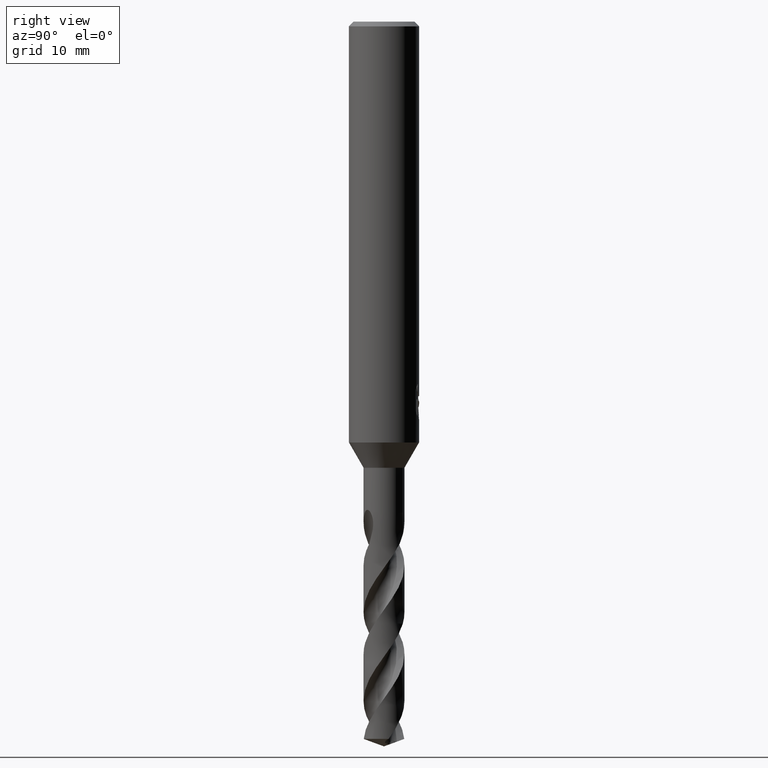
[diagram: clean part render]
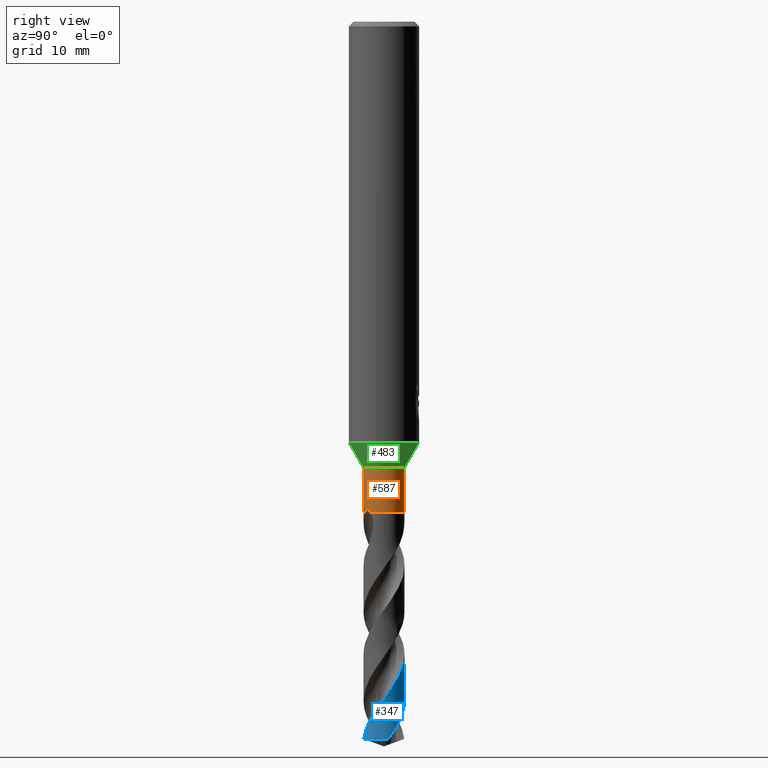
[diagram: same view with three faces highlighted in distinct colors, each labeled with its STEP entity id]
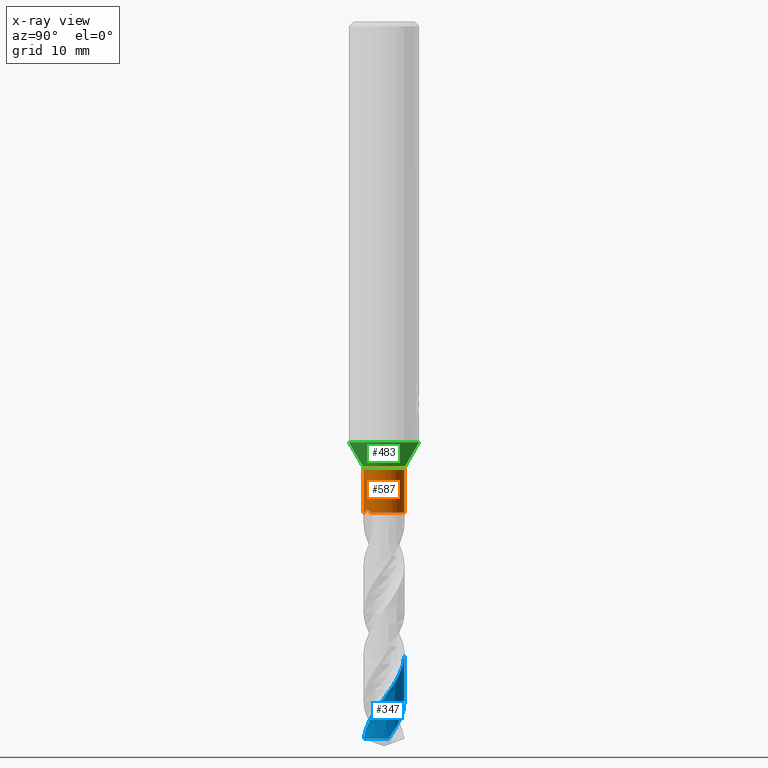
[diagram: x-ray of the same camera — body ghosted, the three highlighted faces saturated]
A machine part, right view with three faces highlighted in distinct colors.
The next image is the same camera in x-ray (body ghosted, the three faces saturated) — at least one of them is partly hidden behind the body in this view.
Their STEP definitions:

[orange] entity #587 — the highlighted cylindrical surface (edge-blend (fillet) strip) has radius 1.75 mm, axis along (-0, -0, 1).
#279=VERTEX_POINT('',#771);
#403=EDGE_CURVE('',#569,#497,#910,.T.);
#419=VERTEX_POINT('',#927);
#447=VERTEX_POINT('',#958);
#489=EDGE_CURVE('',#279,#419,#1003,.T.);
#495=EDGE_CURVE('',#447,#419,#1010,.T.);
#497=VERTEX_POINT('',#1012);
#529=EDGE_CURVE('',#279,#569,#1045,.T.);
#569=VERTEX_POINT('',#1091);
#587=ADVANCED_FACE('',(#1113),#1114,.T.);
#597=VERTEX_POINT('',#1124);
#627=EDGE_CURVE('',#597,#447,#1156,.T.);
#683=EDGE_CURVE('',#597,#497,#1213,.T.);
#771=CARTESIAN_POINT('',(0.599466722486128,-1.64412275959909,-42.0));
#910=LINE('',#2575,#2576);
#927=CARTESIAN_POINT('',(1.32441615201467,-1.14386269118398,-42.0));
#958=CARTESIAN_POINT('',(-2.14306111918916E-016,1.75,-42.0));
#1003=B_SPLINE_CURVE_WITH_KNOTS('',3,(#2971,#2972,#2973,#2974,#2975,#2976,#2977,#2978,#2979,#2980,#2981,#2982),.UNSPECIFIED.,.F.,.F.,(4,2,2,2,2,4),(0.0,0.329145595407548,0.529443022214543,0.69435032335274,0.859153776094327,1.0357119630473),.UNSPECIFIED.);
#1010=CIRCLE('',#2990,1.75);
#1012=CARTESIAN_POINT('',(2.14306111918916E-016,-1.75,-38.1650635094611));
#1045=CIRCLE('',#3155,1.75);
#1091=CARTESIAN_POINT('',(2.14306111918916E-016,-1.75,-42.0));
#1113=FACE_OUTER_BOUND('',#4313,.T.);
#1114=CYLINDRICAL_SURFACE('',#4314,1.75);
#1124=CARTESIAN_POINT('',(0.0,1.75,-38.1650635094611));
#1156=LINE('',#4506,#4507);
#1213=CIRCLE('',#4951,1.75);
#2575=CARTESIAN_POINT('',(2.14306111918916E-016,-1.75,-40.0825317547305));
#2576=VECTOR('',#5339,1.0);
#2971=CARTESIAN_POINT('',(0.599466722486128,-1.64412275959909,-42.0));
#2972=CARTESIAN_POINT('',(0.675472813455839,-1.61641003439255,-41.9258885719186));
#2973=CARTESIAN_POINT('',(0.760489547884302,-1.57932734437737,-41.8565657924817));
#2974=CARTESIAN_POINT('',(0.902008794747854,-1.50087556427395,-41.7866875470166));
#2975=CARTESIAN_POINT('',(0.956780841283039,-1.46679972667483,-41.7697907458232));
#2976=CARTESIAN_POINT('',(1.05584260957425,-1.3966745922607,-41.766106574071));
#2977=CARTESIAN_POINT('',(1.09790077254338,-1.36373467234139,-41.7746401500357));
#2978=CARTESIAN_POINT('',(1.17625998614585,-1.29675265983898,-41.8118380997322));
#2979=CARTESIAN_POINT('',(1.21071948868173,-1.26432051464304,-41.839603240028));
#2980=CARTESIAN_POINT('',(1.27349979701187,-1.2011741501788,-41.9100405856455));
#2981=CARTESIAN_POINT('',(1.30100452471281,-1.17096973609636,-41.9533842266016));
#2982=CARTESIAN_POINT('',(1.32441615201467,-1.14386269118398,-42.0));
#2990=AXIS2_PLACEMENT_3D('',#5438,#5439,#5440);
#3155=AXIS2_PLACEMENT_3D('',#5459,#5460,#5461);
#4313=EDGE_LOOP('',(#5576,#5577,#5578,#5579,#5580,#5581));
#4314=AXIS2_PLACEMENT_3D('',#5582,#5583,#5584);
#4506=CARTESIAN_POINT('',(-2.14306111918916E-016,1.75,-40.0825317547305));
#4507=VECTOR('',#5613,1.0);
#4951=AXIS2_PLACEMENT_3D('',#5642,#5643,#5644);
#5339=DIRECTION('',(-0.0,-0.0,1.0));
#5438=CARTESIAN_POINT('',(0.0,0.0,-42.0));
#5439=DIRECTION('',(0.0,0.0,-1.0));
#5440=DIRECTION('',(0.0,1.0,0.0));
#5459=CARTESIAN_POINT('',(0.0,0.0,-42.0));
#5460=DIRECTION('',(0.0,0.0,-1.0));
#5461=DIRECTION('',(0.0,1.0,0.0));
#5576=ORIENTED_EDGE('',*,*,#627,.F.);
#5577=ORIENTED_EDGE('',*,*,#683,.T.);
#5578=ORIENTED_EDGE('',*,*,#403,.F.);
#5579=ORIENTED_EDGE('',*,*,#529,.F.);
#5580=ORIENTED_EDGE('',*,*,#489,.T.);
#5581=ORIENTED_EDGE('',*,*,#495,.F.);
#5582=CARTESIAN_POINT('',(0.0,0.0,-40.0825317547305));
#5583=DIRECTION('',(-0.0,-0.0,1.0));
#5584=DIRECTION('',(0.0,1.0,0.0));
#5613=DIRECTION('',(0.0,0.0,-1.0));
#5642=CARTESIAN_POINT('',(0.0,0.0,-38.1650635094611));
#5643=DIRECTION('',(0.0,0.0,-1.0));
#5644=DIRECTION('',(0.0,1.0,0.0));

[blue] entity #347 — the highlighted conical surface has half-angle 0 deg.
#283=EDGE_CURVE('',#711,#639,#776,.T.);
#347=ADVANCED_FACE('',(#847),#848,.T.);
#427=EDGE_CURVE('',#673,#703,#936,.T.);
#639=VERTEX_POINT('',#1168);
#673=VERTEX_POINT('',#1203);
#675=EDGE_CURVE('',#673,#639,#1205,.T.);
#703=VERTEX_POINT('',#1235);
#705=EDGE_CURVE('',#711,#703,#1237,.T.);
#711=VERTEX_POINT('',#1243);
#776=B_SPLINE_CURVE_WITH_KNOTS('',3,(#1908,#1909,#1910,#1911,#1912,#1913,#1914,#1915,#1916,#1917,#1918,#1919,#1920,#1921,#1922,#1923,#1924,#1925,#1926,#1927,#1928,#1929,#1930,#1931,#1932,#1933,#1934,#1935,#1936,#1937,#1938,#1939,#1940,#1941,#1942,#1943,#1944,#1945,#1946,#1947,#1948,#1949,#1950,#1951,#1952,#1953,#1954,#1955,#1956,#1957,#1958,#1959,#1960,#1961,#1962,#1963,#1964,#1965,#1966,#1967,#1968,#1969,#1970,#1971,#1972,#1973,#1974,#1975,#1976,#1977,#1978,#1979,#1980,#1981,#1982,#1983,#1984,#1985,#1986,#1987,#1988,#1989,#1990,#1991,#1992,#1993),.UNSPECIFIED.,.F.,.F.,(4,2,2,2,2,2,2,2,2,2,2,2,2,2,2,2,2,2,2,2,2,2,2,2,2,2,2,2,2,2,2,2,2,2,2,2,2,2,2,2,2,2,4),(0.0,0.974043603745516,1.46729353331834,1.76439108332413,1.96733051675974,3.21720046240034,3.26681085383994,3.99778926377135,4.29223800571401,4.78287161761425,5.44931738732369,5.74865798885266,6.20238803819658,6.82915637049189,7.49330861572469,8.10202328078798,8.45425668812374,8.90065681122232,9.53005186130906,10.243743812598,10.8580122124303,11.9439378455943,12.6379561878717,12.7458551064634,13.4192767688239,13.7572930642747,14.4262161348574,15.1010790787376,15.7547320881622,16.4147496994472,17.0027110069048,18.6824305545575,18.9086185383265,19.2382380070086,19.6038826295242,19.8481728878445,20.151469172512,20.1797385471404,20.2188736800682,20.2526708029194,20.2943786016003,20.376954835032,20.5351807691826),.UNSPECIFIED.);
#847=FACE_OUTER_BOUND('',#2339,.T.);
#848=CONICAL_SURFACE('',#2340,1.74995,5.16447508038097E-006);
#936=B_SPLINE_CURVE_WITH_KNOTS('',3,(#2638,#2639,#2640,#2641,#2642,#2643,#2644,#2645,#2646,#2647,#2648,#2649,#2650,#2651,#2652,#2653,#2654,#2655,#2656,#2657,#2658,#2659,#2660,#2661,#2662,#2663,#2664,#2665,#2666,#2667,#2668,#2669,#2670,#2671,#2672,#2673,#2674,#2675,#2676,#2677,#2678,#2679,#2680,#2681,#2682,#2683,#2684,#2685,#2686,#2687,#2688,#2689,#2690,#2691,#2692,#2693,#2694,#2695,#2696,#2697,#2698,#2699,#2700,#2701,#2702,#2703,#2704,#2705,#2706,#2707,#2708,#2709,#2710,#2711,#2712,#2713,#2714,#2715,#2716,#2717,#2718,#2719,#2720,#2721,#2722,#2723,#2724,#2725),.UNSPECIFIED.,.F.,.F.,(4,2,2,2,2,2,2,2,2,2,2,2,2,2,2,2,2,2,2,2,2,2,2,2,2,2,2,2,2,2,2,2,2,2,2,2,2,2,2,2,2,2,2,4),(0.0,0.0802687477709614,0.134298288709109,0.188886189371718,0.371913721636104,0.440185286842689,0.48519732116409,0.528450420694526,0.587994968748795,0.654850319514302,0.689710903491107,0.922894809883429,1.07455893074529,1.22501892859062,1.38325239980819,1.80676629320769,2.22038747582014,2.86182981313341,3.72832865262681,4.42308489571376,4.91210970892384,5.88944877732945,6.38232850953601,7.19787845526162,7.69013531416066,8.5538753089084,9.04654453159488,9.87381057028676,10.3660979415676,11.2278302649346,11.7205218901372,12.5467696636752,13.0390595966493,13.9000824059533,14.3927396211918,15.2207793303693,15.7130904992262,16.5742839898542,17.0669261444791,17.888907373676,18.5595217665341,18.8105607681379,19.6954548208589,20.591588560153),.UNSPECIFIED.);
#1168=CARTESIAN_POINT('',(-1.09890961226863E-014,1.74998323150977,-58.1161605916098));
#1203=CARTESIAN_POINT('',(5.77527281538844E-015,1.7499625516412,-54.1119068690834));
#1205=LINE('',#4936,#4937);
#1235=CARTESIAN_POINT('',(0.250196585667946,-1.73202242148308,-61.3630520900341));
#1237=CIRCLE('',#5000,1.75);
#1243=CARTESIAN_POINT('',(1.70445062211904,0.396671245186779,-61.3630520900341));
#1908=CARTESIAN_POINT('',(1.70445062211904,0.396671245186766,-61.3630520900342));
#1909=CARTESIAN_POINT('',(1.66111375343563,0.582878795991717,-61.1006277270643));
#1910=CARTESIAN_POINT('',(1.58775279467385,0.760070525583836,-60.8353089726521));
#1911=CARTESIAN_POINT('',(1.43683977407769,1.00361918979296,-60.4394156216837));
#1912=CARTESIAN_POINT('',(1.37939731816996,1.08122741332449,-60.3071144713288));
#1913=CARTESIAN_POINT('',(1.27747170770906,1.19746411011267,-60.0941099033158));
#1914=CARTESIAN_POINT('',(1.2370785707928,1.23913814808578,-60.0141326581067));
#1915=CARTESIAN_POINT('',(1.16588837190418,1.30565733589649,-59.8790937403446));
#1916=CARTESIAN_POINT('',(1.13616281535945,1.33160013549033,-59.8241531910214));
#1917=CARTESIAN_POINT('',(0.917503542742688,1.50981701071042,-59.4323598420131));
#1918=CARTESIAN_POINT('',(0.699939590836492,1.6220712371892,-59.1059421767772));
#1919=CARTESIAN_POINT('',(0.457430316550718,1.68917218032921,-58.7557105566524));
#1920=CARTESIAN_POINT('',(0.448169672333806,1.69165274361652,-58.742350986773));
#1921=CARTESIAN_POINT('',(0.301731563413887,1.72958775933734,-58.5317923575118));
#1922=CARTESIAN_POINT('',(0.160374240969461,1.74844824294004,-58.3368816761276));
#1923=CARTESIAN_POINT('',(-0.0397114107212767,1.75047554570916,-58.0615061844922));
#1924=CARTESIAN_POINT('',(-0.0971000619172283,1.74822712155988,-57.9825471787972));
#1925=CARTESIAN_POINT('',(-0.249383096063619,1.73475390406472,-57.7714867007185));
#1926=CARTESIAN_POINT('',(-0.343454401134999,1.71858224390627,-57.6387227046301));
#1927=CARTESIAN_POINT('',(-0.560782430700384,1.66272485666103,-57.3277364764948));
#1928=CARTESIAN_POINT('',(-0.682223205146323,1.6167339927672,-57.1503787764035));
#1929=CARTESIAN_POINT('',(-0.849571903749761,1.53102671754663,-56.8914786261135));
#1930=CARTESIAN_POINT('',(-0.899991839877137,1.50193376399665,-56.8113280113028));
#1931=CARTESIAN_POINT('',(-1.02275526102285,1.42272080324665,-56.6090824111837));
#1932=CARTESIAN_POINT('',(-1.09291319908538,1.36956643417475,-56.4865038305781));
#1933=CARTESIAN_POINT('',(-1.25009100686924,1.2306444777674,-56.196236190568));
#1934=CARTESIAN_POINT('',(-1.33272314641203,1.14067541649712,-56.0293362357362));
#1935=CARTESIAN_POINT('',(-1.48245864640476,0.938845270061716,-55.6831902092667));
#1936=CARTESIAN_POINT('',(-1.54757235929656,0.827011149522708,-55.5039983952524));
#1937=CARTESIAN_POINT('',(-1.64747906914125,0.60173851428813,-55.1625694686745));
#1938=CARTESIAN_POINT('',(-1.68434023116717,0.48926627574313,-55.0006458954861));
#1939=CARTESIAN_POINT('',(-1.72422276281697,0.306795424210424,-54.7435315090941));
#1940=CARTESIAN_POINT('',(-1.73487631064609,0.239237533182169,-54.6494628138491));
#1941=CARTESIAN_POINT('',(-1.7500181267817,0.0853392422058732,-54.4353502837866));
#1942=CARTESIAN_POINT('',(-1.75210100653162,-0.00107227030882243,-54.3149763188469));
#1943=CARTESIAN_POINT('',(-1.74167475010098,-0.209329773673887,-54.026446855104));
#1944=CARTESIAN_POINT('',(-1.72284662887104,-0.330344266472516,-53.8591289105452));
#1945=CARTESIAN_POINT('',(-1.65593178564536,-0.582655896060815,-53.4995842491892));
#1946=CARTESIAN_POINT('',(-1.60463739893164,-0.711739973045769,-53.3072289639327));
#1947=CARTESIAN_POINT('',(-1.48225958785939,-0.937757519943169,-52.9515276307979));
#1948=CARTESIAN_POINT('',(-1.41507297401583,-1.03640346768522,-52.7883758271165));
#1949=CARTESIAN_POINT('',(-1.20240705204541,-1.28879433872343,-52.3338696907037));
#1950=CARTESIAN_POINT('',(-1.03866864049816,-1.4240569713268,-52.0421003760237));
#1951=CARTESIAN_POINT('',(-0.737152866704635,-1.59282136934979,-51.5663391862274));
#1952=CARTESIAN_POINT('',(-0.612761668198803,-1.64461578884811,-51.3825367485944));
#1953=CARTESIAN_POINT('',(-0.46412755054388,-1.68740464322907,-51.1674712080571));
#1954=CARTESIAN_POINT('',(-0.444069058577488,-1.69279394910898,-51.1385219814925));
#1955=CARTESIAN_POINT('',(-0.297792021071381,-1.72931119589532,-50.9288635187979));
#1956=CARTESIAN_POINT('',(-0.168237702558041,-1.74674214283987,-50.7499295448648));
#1957=CARTESIAN_POINT('',(0.0281434550331753,-1.7509484324924,-50.4796060920438));
#1958=CARTESIAN_POINT('',(0.0937255266915751,-1.74865852571378,-50.3894450729513));
#1959=CARTESIAN_POINT('',(0.28802340758148,-1.73093563523919,-50.1200035044059));
#1960=CARTESIAN_POINT('',(0.415242880349005,-1.70489719371554,-49.9396748773872));
#1961=CARTESIAN_POINT('',(0.663039350482678,-1.62473789594746,-49.5800880072757));
#1962=CARTESIAN_POINT('',(0.782541703239305,-1.57067058661592,-49.4012445056599));
#1963=CARTESIAN_POINT('',(1.00371832959248,-1.43904937962742,-49.0458034145992));
#1964=CARTESIAN_POINT('',(1.10506082764541,-1.36277562126206,-48.8696036862986));
#1965=CARTESIAN_POINT('',(1.29068702199907,-1.1885922007965,-48.5181324014442));
#1966=CARTESIAN_POINT('',(1.37406875977103,-1.09112744220459,-48.3432509451989));
#1967=CARTESIAN_POINT('',(1.5102557859521,-0.89127349771003,-48.0095085470695));
#1968=CARTESIAN_POINT('',(1.56490286518746,-0.791339379442095,-47.8510735445792));
#1969=CARTESIAN_POINT('',(1.73674919127346,-0.388709344592217,-47.2445792046914));
#1970=CARTESIAN_POINT('',(1.77843472854853,-0.0612216661643396,-46.8100289076692));
#1971=CARTESIAN_POINT('',(1.72434039218624,0.301280513327416,-46.3001707751267));
#1972=CARTESIAN_POINT('',(1.71634452426745,0.343921872167593,-46.239486864509));
#1973=CARTESIAN_POINT('',(1.69273109039206,0.448227549775436,-46.0908294514217));
#1974=CARTESIAN_POINT('',(1.67528687986777,0.509675107873629,-46.0028602644596));
#1975=CARTESIAN_POINT('',(1.6310841474923,0.637862585687191,-45.8181730928832));
#1976=CARTESIAN_POINT('',(1.60465840116886,0.701491312862852,-45.7269515047296));
#1977=CARTESIAN_POINT('',(1.55420514691762,0.805483728752306,-45.5700227988301));
#1978=CARTESIAN_POINT('',(1.53265774441084,0.845685180469283,-45.5070741073848));
#1979=CARTESIAN_POINT('',(1.48187185568404,0.932397204471638,-45.3639239434804));
#1980=CARTESIAN_POINT('',(1.45238110249454,0.977499135896794,-45.284184341318));
#1981=CARTESIAN_POINT('',(1.41924038897341,1.02371284136555,-45.1947509797476));
#1982=CARTESIAN_POINT('',(1.41518842395563,1.02934171153325,-45.1837623069212));
#1983=CARTESIAN_POINT('',(1.40140800341192,1.04806714060262,-45.1479279853233));
#1984=CARTESIAN_POINT('',(1.3931417541667,1.05903684440975,-45.1273175201372));
#1985=CARTESIAN_POINT('',(1.37716823392561,1.07970367003265,-45.089194365686));
#1986=CARTESIAN_POINT('',(1.3695527208986,1.0893516756239,-45.0716767293017));
#1987=CARTESIAN_POINT('',(1.35201596561273,1.11107854513732,-45.0328292403263));
#1988=CARTESIAN_POINT('',(1.34199119669697,1.12317441763336,-45.0116087828324));
#1989=CARTESIAN_POINT('',(1.31101459670804,1.15950432557998,-44.9489918242306));
#1990=CARTESIAN_POINT('',(1.28908950114928,1.18389412316861,-44.9084188480899));
#1991=CARTESIAN_POINT('',(1.22066440547017,1.25555465878816,-44.7924710095003));
#1992=CARTESIAN_POINT('',(1.17071462837619,1.30262563852666,-44.720407341835));
#1993=CARTESIAN_POINT('',(1.11510249506521,1.34860830174318,-44.651));
#2339=EDGE_LOOP('',(#5258,#5259,#5260,#5261));
#2340=AXIS2_PLACEMENT_3D('',#5262,#5263,#5264);
#2638=CARTESIAN_POINT('',(1.21632431193032,-1.25807515444766,-44.651));
#2639=CARTESIAN_POINT('',(1.20555638069342,-1.26848589730082,-44.6731712643849));
#2640=CARTESIAN_POINT('',(1.19462268396244,-1.27879001083426,-44.6953083224348));
#2641=CARTESIAN_POINT('',(1.17599212794565,-1.29589561609945,-44.7322914582129));
#2642=CARTESIAN_POINT('',(1.1684160481856,-1.30273126264401,-44.7471350891516));
#2643=CARTESIAN_POINT('',(1.15299015159047,-1.31640466337958,-44.7769421630135));
#2644=CARTESIAN_POINT('',(1.14515209484828,-1.32322950492649,-44.7918786693638));
#2645=CARTESIAN_POINT('',(1.11058445543426,-1.35278642074761,-44.8568194002301));
#2646=CARTESIAN_POINT('',(1.0831663440203,-1.37486104334804,-44.9059206843411));
#2647=CARTESIAN_POINT('',(1.04381692233533,-1.40457446652719,-44.9734866745909));
#2648=CARTESIAN_POINT('',(1.03300374234684,-1.41254710466604,-44.99177618419));
#2649=CARTESIAN_POINT('',(1.01483498055567,-1.425620459928,-45.022109219688));
#2650=CARTESIAN_POINT('',(1.00756584524597,-1.43076746221754,-45.0341423946142));
#2651=CARTESIAN_POINT('',(0.993209446417624,-1.44076847027158,-45.0577319758479));
#2652=CARTESIAN_POINT('',(0.986132346454521,-1.44562175714548,-45.0692785104299));
#2653=CARTESIAN_POINT('',(0.969211531575976,-1.4570431776112,-45.0967212242113));
#2654=CARTESIAN_POINT('',(0.959341831813287,-1.46356052623572,-45.1125979644636));
#2655=CARTESIAN_POINT('',(0.938250829604439,-1.47718266160343,-45.1463289105554));
#2656=CARTESIAN_POINT('',(0.927030386369765,-1.4842496863505,-45.1641577843351));
#2657=CARTESIAN_POINT('',(0.909866576316254,-1.49479033973453,-45.1913414770396));
#2658=CARTESIAN_POINT('',(0.903986721042352,-1.49835372710069,-45.2006404721841));
#2659=CARTESIAN_POINT('',(0.858254724920307,-1.5256987535819,-45.272947037505));
#2660=CARTESIAN_POINT('',(0.817804284920025,-1.5477380192619,-45.3366106314956));
#2661=CARTESIAN_POINT('',(0.750253215904771,-1.58120680944678,-45.4414205003887));
#2662=CARTESIAN_POINT('',(0.72332265591002,-1.59370548392133,-45.4828292991088));
#2663=CARTESIAN_POINT('',(0.66910944240892,-1.61721147701627,-45.5652176141333));
#2664=CARTESIAN_POINT('',(0.641780998407383,-1.62825164458225,-45.6062748787675));
#2665=CARTESIAN_POINT('',(0.58507998481501,-1.6495034197874,-45.6903509270785));
#2666=CARTESIAN_POINT('',(0.55582291159184,-1.65959166116729,-45.7330834693402));
#2667=CARTESIAN_POINT('',(0.446837169971501,-1.69395330263707,-45.8906317016598));
#2668=CARTESIAN_POINT('',(0.365820401112665,-1.71327651964155,-46.0047952072277));
#2669=CARTESIAN_POINT('',(0.203582962859954,-1.73993667435974,-46.2315377833005));
#2670=CARTESIAN_POINT('',(0.122754147654468,-1.74748705521826,-46.3438753144114));
#2671=CARTESIAN_POINT('',(-0.0836448261565941,-1.75242470633812,-46.6298554640286));
#2672=CARTESIAN_POINT('',(-0.209144693710757,-1.74192086672487,-46.8026288125479));
#2673=CARTESIAN_POINT('',(-0.499195218521707,-1.68578401538513,-47.2110210794231));
#2674=CARTESIAN_POINT('',(-0.660389604244204,-1.62942190836503,-47.4445693482068));
#2675=CARTESIAN_POINT('',(-0.931731194219694,-1.48751487649863,-47.8671869943786));
#2676=CARTESIAN_POINT('',(-1.04456476260879,-1.41054339796072,-48.0548480720241));
#2677=CARTESIAN_POINT('',(-1.21951279761492,-1.25865562551193,-48.3756229038649));
#2678=CARTESIAN_POINT('',(-1.28657662762969,-1.19003364448395,-48.5078908902459));
#2679=CARTESIAN_POINT('',(-1.46994935059897,-0.968626727265488,-48.9048818320346));
#2680=CARTESIAN_POINT('',(-1.56704851665706,-0.802044453384388,-49.1676461122185));
#2681=CARTESIAN_POINT('',(-1.66958975884766,-0.532986400604855,-49.5659280274121));
#2682=CARTESIAN_POINT('',(-1.69646680034296,-0.440037244927324,-49.6991355168865));
#2683=CARTESIAN_POINT('',(-1.74709793099215,-0.188481471636877,-50.0533232404585));
#2684=CARTESIAN_POINT('',(-1.75698793200504,-0.0282081343645794,-50.2733303129486));
#2685=CARTESIAN_POINT('',(-1.73781348573395,0.227159390856958,-50.6276377477028));
#2686=CARTESIAN_POINT('',(-1.72266178112102,0.322589658471984,-50.760693420946));
#2687=CARTESIAN_POINT('',(-1.65939359354237,0.580878947354437,-51.1277544434749));
#2688=CARTESIAN_POINT('',(-1.59544226325799,0.738575447502787,-51.360586872248));
#2689=CARTESIAN_POINT('',(-1.46118140252024,0.967772210599989,-51.7280491599637));
#2690=CARTESIAN_POINT('',(-1.40558035200799,1.04690384815982,-51.8612033927705));
#2691=CARTESIAN_POINT('',(-1.23974426843625,1.24566884486086,-52.2184991046075));
#2692=CARTESIAN_POINT('',(-1.11905787262383,1.35509789869707,-52.4416050194539));
#2693=CARTESIAN_POINT('',(-0.905503007106952,1.50056732070627,-52.7990917375619));
#2694=CARTESIAN_POINT('',(-0.821426171028001,1.54820125176332,-52.9321551166846));
#2695=CARTESIAN_POINT('',(-0.580361504381174,1.65954628698141,-53.2986831212346));
#2696=CARTESIAN_POINT('',(-0.417582983128682,1.70776468910501,-53.5309918703715));
#2697=CARTESIAN_POINT('',(-0.155080567001213,1.74574457682034,-53.8979179029672));
#2698=CARTESIAN_POINT('',(-0.0585443243662741,1.75164964374639,-54.0310781419852));
#2699=CARTESIAN_POINT('',(0.200061131405061,1.74602601973209,-54.3881042222508));
#2700=CARTESIAN_POINT('',(0.36067907329898,1.72001943831668,-54.6109368385727));
#2701=CARTESIAN_POINT('',(0.607429848209899,1.64399103939595,-54.9681462251209));
#2702=CARTESIAN_POINT('',(0.697120447411769,1.60802074066132,-55.1012093718931));
#2703=CARTESIAN_POINT('',(0.934440209106128,1.48920374657466,-55.4675440542185));
#2704=CARTESIAN_POINT('',(1.07359679801021,1.39219909728927,-55.6996609095527));
#2705=CARTESIAN_POINT('',(1.26702731331622,1.21093100239552,-56.0663848494729));
#2706=CARTESIAN_POINT('',(1.33189862642584,1.13920496924329,-56.1995361400358));
#2707=CARTESIAN_POINT('',(1.48914987648739,0.933390321071715,-56.5570374266159));
#2708=CARTESIAN_POINT('',(1.56923112363944,0.791342366600799,-56.7803468975541));
#2709=CARTESIAN_POINT('',(1.66385607921637,0.550727245312144,-57.1380488099472));
#2710=CARTESIAN_POINT('',(1.69168997190941,0.458183954916684,-57.2711183119059));
#2711=CARTESIAN_POINT('',(1.7468647713496,0.198544317320187,-57.6375075274634));
#2712=CARTESIAN_POINT('',(1.75784674905741,0.0292347515577175,-57.8696795209328));
#2713=CARTESIAN_POINT('',(1.73680740765412,-0.235055530499478,-58.2364421219624));
#2714=CARTESIAN_POINT('',(1.72120646782954,-0.330498993694314,-58.369586084283));
#2715=CARTESIAN_POINT('',(1.65870389512197,-0.580640119073859,-58.7254354846808));
#2716=CARTESIAN_POINT('',(1.59822657443981,-0.730775707407189,-58.9470984716665));
#2717=CARTESIAN_POINT('',(1.45286379280675,-0.984323697489191,-59.351481982257));
#2718=CARTESIAN_POINT('',(1.37489164598934,-1.09061223163073,-59.5323629558548));
#2719=CARTESIAN_POINT('',(1.25227400641482,-1.22339888602999,-59.7818384135547));
#2720=CARTESIAN_POINT('',(1.2173837320896,-1.25812117364628,-59.8497231150188));
#2721=CARTESIAN_POINT('',(1.05315123637543,-1.4083365719326,-60.1574083970704));
#2722=CARTESIAN_POINT('',(0.90840641520507,-1.50579938221484,-60.3962896992936));
#2723=CARTESIAN_POINT('',(0.592792792231872,-1.65590163724761,-60.8784808810239));
#2724=CARTESIAN_POINT('',(0.423726766554707,-1.70695412311092,-61.1200645073421));
#2725=CARTESIAN_POINT('',(0.25019658566793,-1.73202242148308,-61.3630520900342));
#4936=CARTESIAN_POINT('',(-2.17816893167823E-016,1.74995,-51.6815260450171));
#4937=VECTOR('',#5638,1.0);
#5000=AXIS2_PLACEMENT_3D('',#5668,#5669,#5670);
#5258=ORIENTED_EDGE('',*,*,#675,.F.);
#5259=ORIENTED_EDGE('',*,*,#427,.T.);
#5260=ORIENTED_EDGE('',*,*,#705,.F.);
#5261=ORIENTED_EDGE('',*,*,#283,.T.);
#5262=CARTESIAN_POINT('',(0.0,0.0,-51.6815260450171));
#5263=DIRECTION('',(0.0,-0.0,-1.0));
#5264=DIRECTION('',(0.0,1.0,0.0));
#5638=DIRECTION('',(-6.32444899756375E-022,5.16447508035801E-006,-0.999999999986664));
#5668=CARTESIAN_POINT('',(0.0,0.0,-61.3630520900341));
#5669=DIRECTION('',(0.0,0.0,-1.0));
#5670=DIRECTION('',(0.0,1.0,0.0));

[green] entity #483 — the highlighted conical surface has half-angle 30 deg.
#305=EDGE_CURVE('',#497,#707,#800,.T.);
#319=EDGE_CURVE('',#461,#707,#814,.T.);
#461=VERTEX_POINT('',#972);
#475=EDGE_CURVE('',#461,#597,#988,.T.);
#483=ADVANCED_FACE('',(#996),#997,.T.);
#497=VERTEX_POINT('',#1012);
#597=VERTEX_POINT('',#1124);
#683=EDGE_CURVE('',#597,#497,#1213,.T.);
#707=VERTEX_POINT('',#1239);
#800=LINE('',#2111,#2112);
#814=CIRCLE('',#2216,3.0);
#972=CARTESIAN_POINT('',(0.0,3.0,-36.0));
#988=LINE('',#2915,#2916);
#996=FACE_OUTER_BOUND('',#2936,.T.);
#997=CONICAL_SURFACE('',#2937,2.375,0.523598775598299);
#1012=CARTESIAN_POINT('',(2.14306111918916E-016,-1.75,-38.1650635094611));
#1124=CARTESIAN_POINT('',(0.0,1.75,-38.1650635094611));
#1213=CIRCLE('',#4951,1.75);
#1239=CARTESIAN_POINT('',(3.67381906146713E-016,-3.0,-36.0));
#2111=CARTESIAN_POINT('',(2.90844009032815E-016,-2.375,-37.0825317547306));
#2112=VECTOR('',#5199,1.0);
#2216=AXIS2_PLACEMENT_3D('',#5201,#5202,#5203);
#2915=CARTESIAN_POINT('',(-2.90844009032815E-016,2.375,-37.0825317547306));
#2916=VECTOR('',#5413,1.0);
#2936=EDGE_LOOP('',(#5415,#5416,#5417,#5418));
#2937=AXIS2_PLACEMENT_3D('',#5419,#5420,#5421);
#4951=AXIS2_PLACEMENT_3D('',#5642,#5643,#5644);
#5199=DIRECTION('',(6.12303176911189E-017,-0.5,0.866025403784438));
#5201=CARTESIAN_POINT('',(0.0,0.0,-36.0));
#5202=DIRECTION('',(0.0,0.0,-1.0));
#5203=DIRECTION('',(0.0,1.0,0.0));
#5413=DIRECTION('',(6.12303176911189E-017,-0.5,-0.866025403784438));
#5415=ORIENTED_EDGE('',*,*,#475,.F.);
#5416=ORIENTED_EDGE('',*,*,#319,.T.);
#5417=ORIENTED_EDGE('',*,*,#305,.F.);
#5418=ORIENTED_EDGE('',*,*,#683,.F.);
#5419=CARTESIAN_POINT('',(0.0,0.0,-37.0825317547305));
#5420=DIRECTION('',(-0.0,-0.0,1.0));
#5421=DIRECTION('',(0.0,1.0,0.0));
#5642=CARTESIAN_POINT('',(0.0,0.0,-38.1650635094611));
#5643=DIRECTION('',(0.0,0.0,-1.0));
#5644=DIRECTION('',(0.0,1.0,0.0));